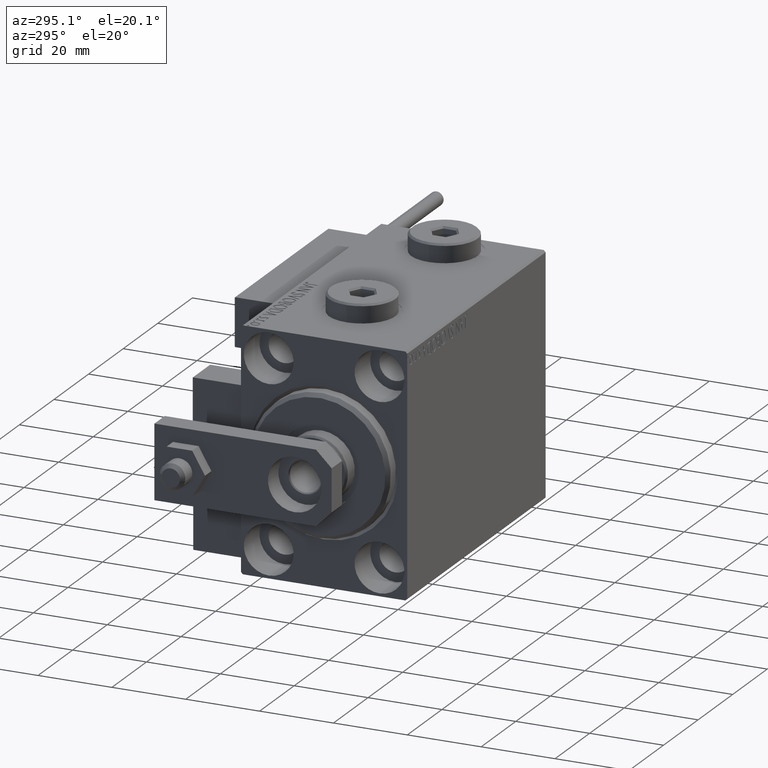
[diagram: clean part render]
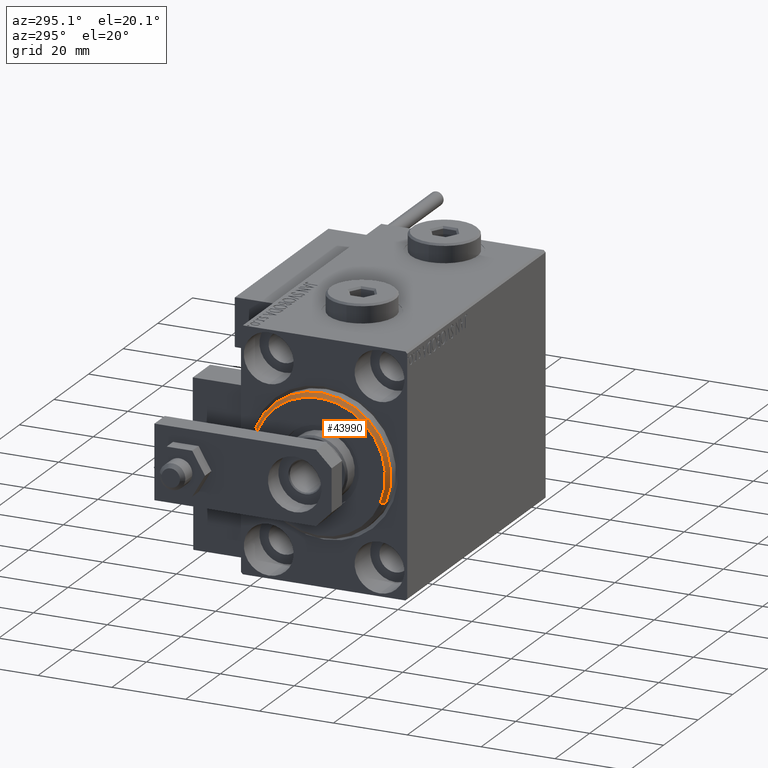
[diagram: same view with one face highlighted and labeled with its STEP entity id]
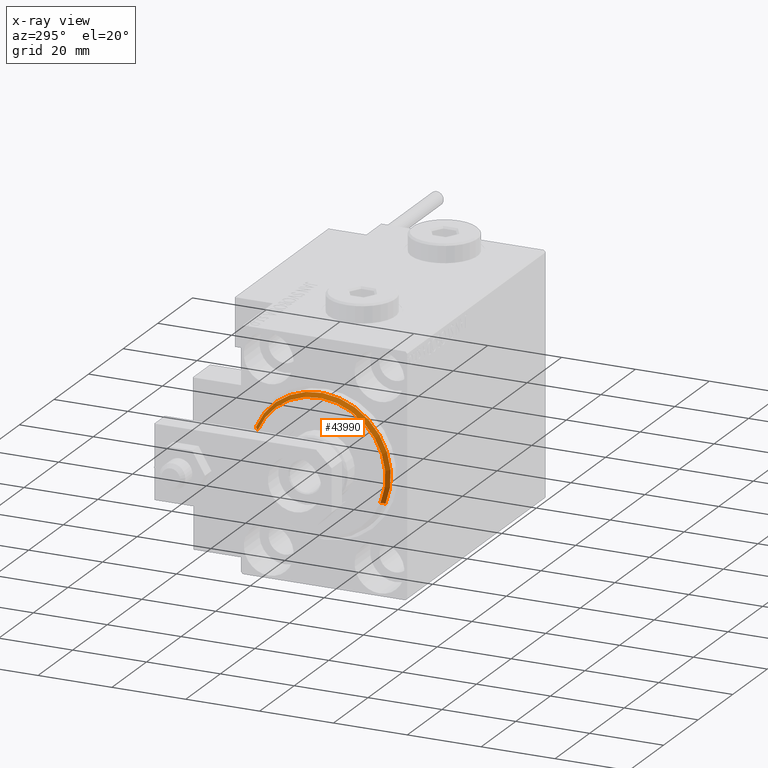
[diagram: x-ray of the same camera — body ghosted, the highlighted face saturated]
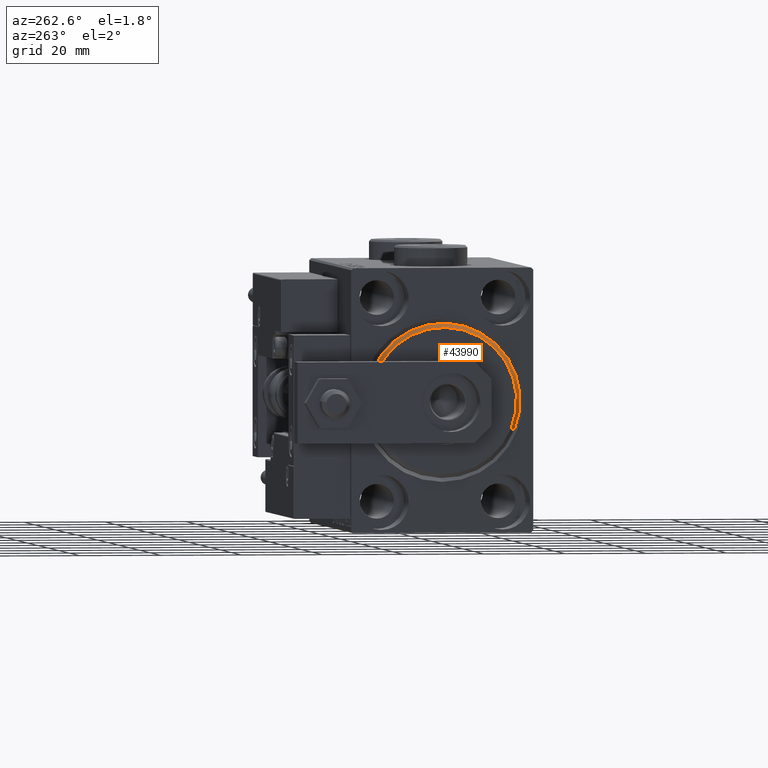
[diagram: same view with one face highlighted and labeled with its STEP entity id]
A machine part, auxiliary view. The second image highlights one B-rep face of the part: STEP entity #43990.
The next image is the same camera in x-ray: the body ghosted, the highlighted face saturated — about 0% of this face is hidden behind the body in this view.
A second angle (auxiliary view) of the same face is appended — the face is thin or edge-on in the first view.
In plain terms, the highlighted conical surface has half-angle 45 deg.
Its self-contained STEP definition (entity closure, byte-faithful):
#1200 = AXIS2_PLACEMENT_3D ( 'NONE', #40617, #25256, #5684 ) ;
#1968 = LINE ( 'NONE', #29599, #39141 ) ;
#4446 = CARTESIAN_POINT ( 'NONE',  ( 3.000000000000000000, 0.000000000000000000, 17.99999999999999645 ) ) ;
#5684 = DIRECTION ( 'NONE',  ( 0.000000000000000000, 0.000000000000000000, -1.000000000000000000 ) ) ;
#6173 = VECTOR ( 'NONE', #39407, 1000.000000000000000 ) ;
#6930 = EDGE_CURVE ( 'NONE', #45619, #13081, #36510, .T. ) ;
#7370 = VERTEX_POINT ( 'NONE', #28924 ) ;
#7892 = DIRECTION ( 'NONE',  ( 0.000000000000000000, 0.000000000000000000, -1.000000000000000000 ) ) ;
#9536 = DIRECTION ( 'NONE',  ( -0.7071067811865487940, 8.659560562354918067E-17, -0.7071067811865463515 ) ) ;
#10096 = CARTESIAN_POINT ( 'NONE',  ( 3.000000000000000000, 0.000000000000000000, 0.000000000000000000 ) ) ;
#13081 = VERTEX_POINT ( 'NONE', #37078 ) ;
#13564 = CONICAL_SURFACE ( 'NONE', #18556, 17.99999999999999645, 0.7853981633974466137 ) ;
#13746 = FACE_OUTER_BOUND ( 'NONE', #43924, .T. ) ;
#17389 = ORIENTED_EDGE ( 'NONE', *, *, #48563, .F. ) ;
#18556 = AXIS2_PLACEMENT_3D ( 'NONE', #10096, #50473, #37973 ) ;
#19892 = DIRECTION ( 'NONE',  ( 1.000000000000000000, -0.000000000000000000, 0.000000000000000000 ) ) ;
#20704 = AXIS2_PLACEMENT_3D ( 'NONE', #43348, #19892, #7892 ) ;
#24519 = LINE ( 'NONE', #51384, #6173 ) ;
#25256 = DIRECTION ( 'NONE',  ( -1.000000000000000000, 0.000000000000000000, 0.000000000000000000 ) ) ;
#28924 = CARTESIAN_POINT ( 'NONE',  ( 1.999999999999992228, 2.326828918379970970E-15, -19.00000000000000000 ) ) ;
#29085 = EDGE_CURVE ( 'NONE', #13081, #7370, #1968, .T. ) ;
#29599 = CARTESIAN_POINT ( 'NONE',  ( 3.000000000000000000, 2.204364238465235033E-15, -17.99999999999999645 ) ) ;
#29864 = VERTEX_POINT ( 'NONE', #50308 ) ;
#35360 = ORIENTED_EDGE ( 'NONE', *, *, #47332, .T. ) ;
#36510 = CIRCLE ( 'NONE', #20704, 17.99999999999999645 ) ;
#37078 = CARTESIAN_POINT ( 'NONE',  ( 3.000000000000000000, 2.265596578422603002E-15, -17.99999999999999645 ) ) ;
#37973 = DIRECTION ( 'NONE',  ( 0.000000000000000000, 0.000000000000000000, 1.000000000000000000 ) ) ;
#39141 = VECTOR ( 'NONE', #9536, 1000.000000000000000 ) ;
#39407 = DIRECTION ( 'NONE',  ( -0.7071067811865487940, 0.000000000000000000, 0.7071067811865463515 ) ) ;
#40617 = CARTESIAN_POINT ( 'NONE',  ( 1.999999999999992228, 0.000000000000000000, 0.000000000000000000 ) ) ;
#41433 = ORIENTED_EDGE ( 'NONE', *, *, #6930, .F. ) ;
#43348 = CARTESIAN_POINT ( 'NONE',  ( 3.000000000000000000, 0.000000000000000000, 0.000000000000000000 ) ) ;
#43924 = EDGE_LOOP ( 'NONE', ( #47832, #41433, #35360, #17389 ) ) ;
#43990 = ADVANCED_FACE ( 'NONE', ( #13746 ), #13564, .T. ) ;
#45619 = VERTEX_POINT ( 'NONE', #4446 ) ;
#47010 = CIRCLE ( 'NONE', #1200, 19.00000000000000000 ) ;
#47332 = EDGE_CURVE ( 'NONE', #45619, #29864, #24519, .T. ) ;
#47832 = ORIENTED_EDGE ( 'NONE', *, *, #29085, .F. ) ;
#48563 = EDGE_CURVE ( 'NONE', #7370, #29864, #47010, .T. ) ;
#50308 = CARTESIAN_POINT ( 'NONE',  ( 1.999999999999992228, 0.000000000000000000, 19.00000000000000000 ) ) ;
#50473 = DIRECTION ( 'NONE',  ( -1.000000000000000000, 0.000000000000000000, 0.000000000000000000 ) ) ;
#51384 = CARTESIAN_POINT ( 'NONE',  ( 3.000000000000000000, 0.000000000000000000, 17.99999999999999645 ) ) ;